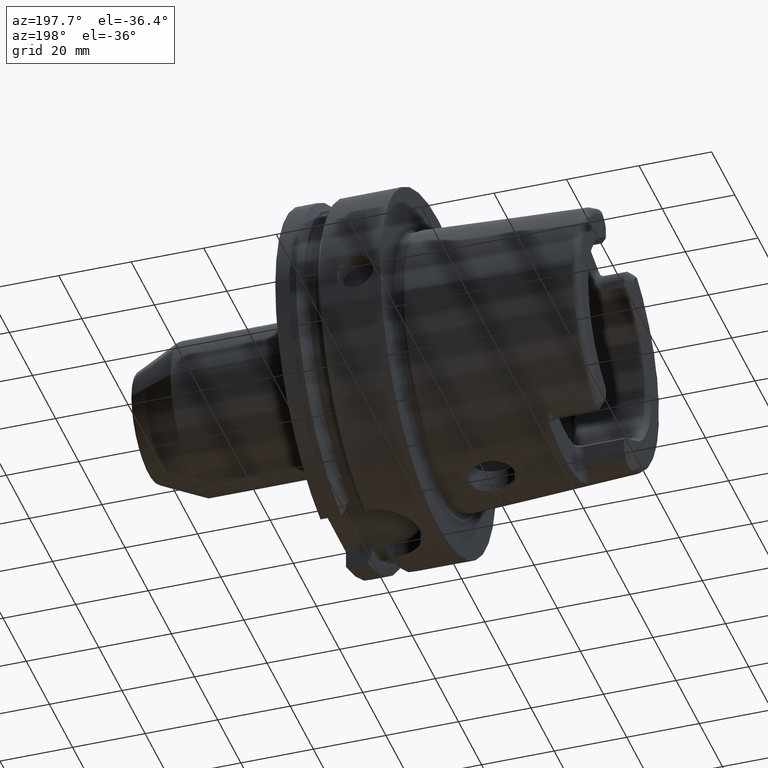
[diagram: clean part render]
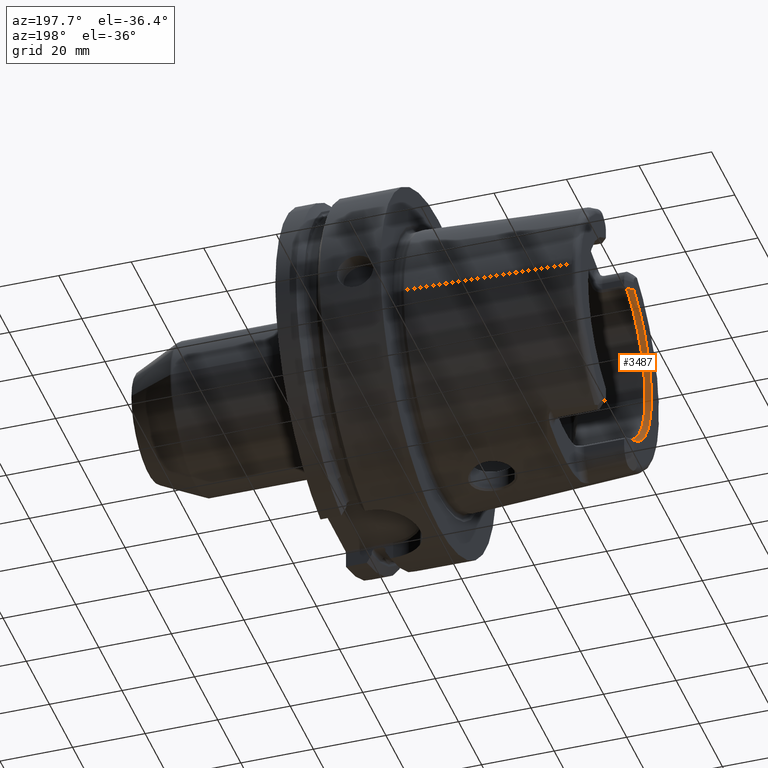
[diagram: same view with one face highlighted and labeled with its STEP entity id]
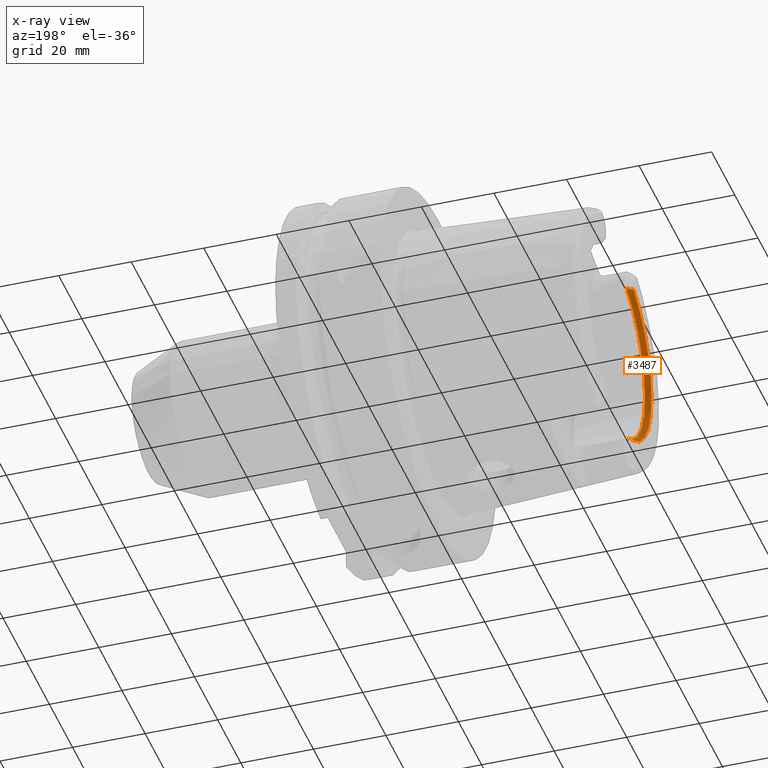
[diagram: x-ray of the same camera — body ghosted, the highlighted face saturated]
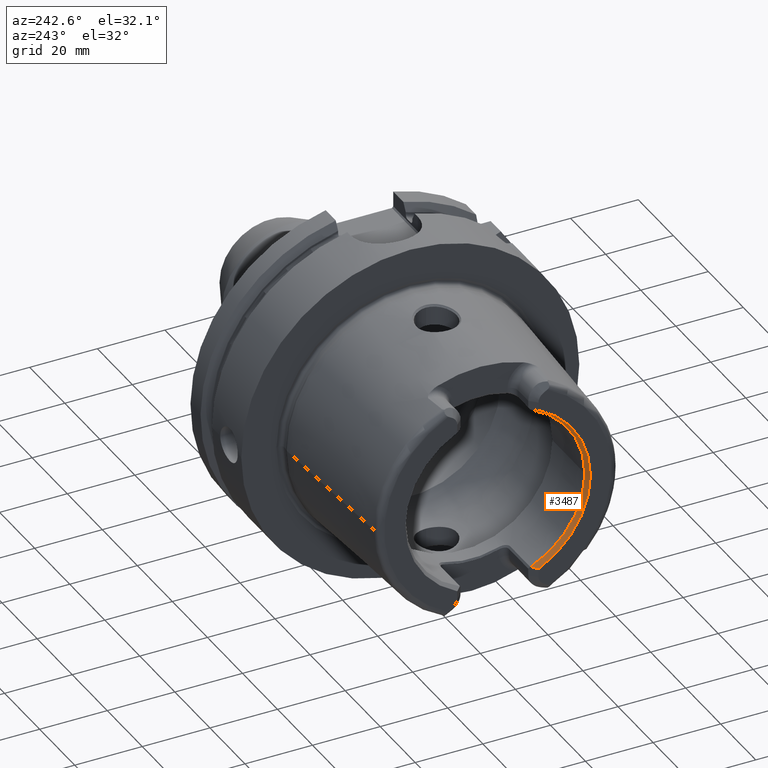
[diagram: same view with one face highlighted and labeled with its STEP entity id]
A machine part, auxiliary view. The second image highlights one B-rep face of the part: STEP entity #3487.
The next image is the same camera in x-ray: the body ghosted, the highlighted face saturated — about 0% of this face is hidden behind the body in this view.
A second angle (auxiliary view) of the same face is appended — the face is thin or edge-on in the first view.
In plain terms, the highlighted conical surface has half-angle 30 deg.
Its self-contained STEP definition (entity closure, byte-faithful):
#177=CARTESIAN_POINT('',(-5.E1,-1.201E1,-2.458981997495E1));
#178=CARTESIAN_POINT('',(-4.949907931886E1,-1.150907931886E1,
-2.451261809834E1));
#179=CARTESIAN_POINT('',(-4.899907279502E1,-1.100907279502E1,
-2.442499653617E1));
#180=CARTESIAN_POINT('',(-4.85E1,-1.051E1,-2.432673220965E1));
#182=CARTESIAN_POINT('',(-4.85E1,0.E0,0.E0));
#183=DIRECTION('',(-1.E0,0.E0,0.E0));
#184=DIRECTION('',(0.E0,-3.966037735849E-1,-9.179898947038E-1));
#185=AXIS2_PLACEMENT_3D('',#182,#183,#184);
#187=CARTESIAN_POINT('',(-4.85E1,0.E0,0.E0));
#188=DIRECTION('',(1.E0,0.E0,0.E0));
#189=DIRECTION('',(0.E0,-3.966037735849E-1,9.179898947038E-1));
#190=AXIS2_PLACEMENT_3D('',#187,#188,#189);
#192=CARTESIAN_POINT('',(-4.85E1,-1.051E1,2.432673220965E1));
#193=CARTESIAN_POINT('',(-4.899907279502E1,-1.100907279502E1,2.442499653617E1));
#194=CARTESIAN_POINT('',(-4.949907931886E1,-1.150907931886E1,2.451261809834E1));
#195=CARTESIAN_POINT('',(-5.E1,-1.201E1,2.458981997495E1));
#197=CARTESIAN_POINT('',(-5.E1,0.E0,0.E0));
#198=DIRECTION('',(1.E0,0.E0,0.E0));
#199=DIRECTION('',(0.E0,-4.388653384185E-1,8.985528447091E-1));
#200=AXIS2_PLACEMENT_3D('',#197,#198,#199);
#2911=CARTESIAN_POINT('',(-4.85E1,-2.65E1,0.E0));
#2912=VERTEX_POINT('',#2911);
#2956=CARTESIAN_POINT('',(-5.E1,-1.201E1,2.458981997495E1));
#2958=VERTEX_POINT('',#2956);
#2968=VERTEX_POINT('',#192);
#3049=CARTESIAN_POINT('',(-5.E1,-1.201E1,-2.458981997495E1));
#3051=VERTEX_POINT('',#3049);
#3067=VERTEX_POINT('',#180);
#3471=CARTESIAN_POINT('',(-4.925E1,0.E0,0.E0));
#3472=DIRECTION('',(-1.E0,0.E0,0.E0));
#3473=DIRECTION('',(0.E0,1.E0,0.E0));
#3474=AXIS2_PLACEMENT_3D('',#3471,#3472,#3473);
#3475=CONICAL_SURFACE('',#3474,2.693301270189E1,3.E1);
#3477=ORIENTED_EDGE('',*,*,#3476,.T.);
#3479=ORIENTED_EDGE('',*,*,#3478,.T.);
#3481=ORIENTED_EDGE('',*,*,#3480,.F.);
#3483=ORIENTED_EDGE('',*,*,#3482,.T.);
#3484=ORIENTED_EDGE('',*,*,#3420,.T.);
#3485=EDGE_LOOP('',(#3477,#3479,#3481,#3483,#3484));
#3486=FACE_OUTER_BOUND('',#3485,.F.);
#3487=ADVANCED_FACE('',(#3486),#3475,.F.);
#181=B_SPLINE_CURVE_WITH_KNOTS('',3,(#177,#178,#179,#180),.UNSPECIFIED.,.F.,.F.,
(4,4),(0.E0,1.E0),.UNSPECIFIED.);
#186=CIRCLE('',#185,2.65E1);
#191=CIRCLE('',#190,2.65E1);
#196=B_SPLINE_CURVE_WITH_KNOTS('',3,(#192,#193,#194,#195),.UNSPECIFIED.,.F.,.F.,
(4,4),(0.E0,1.E0),.UNSPECIFIED.);
#201=CIRCLE('',#200,2.736602540378E1);
#3420=EDGE_CURVE('',#2958,#3051,#201,.T.);
#3476=EDGE_CURVE('',#3051,#3067,#181,.T.);
#3478=EDGE_CURVE('',#3067,#2912,#186,.T.);
#3480=EDGE_CURVE('',#2968,#2912,#191,.T.);
#3482=EDGE_CURVE('',#2968,#2958,#196,.T.);